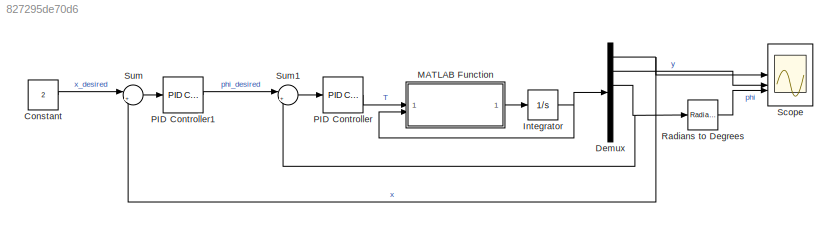
MODEL slx_827295de70d6
KIND model
CONFIG AbsTol = auto
CONFIG EnableMultiTasking = off
CONFIG FixedStep = 1e-3
CONFIG MaxStep = auto
CONFIG MinStep = auto
CONFIG RelTol = 1e-3
CONFIG SampleTimeConstraint = Unconstrained
CONFIG SolverName = FixedStepAuto
CONFIG StartTime = 0.0
CONFIG StopTime = 15
BLOCK [Constant] Constant
  Value = 2
BLOCK [Demux] Demux
  Outputs = 6
BLOCK [Integrator] Integrator
  InitialCondition = [0;0;0;0;0;0]
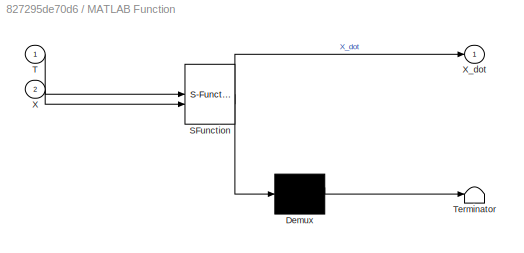
BLOCK [SubSystem] MATLAB Function
  ErrorFcn = Stateflow.Translate.translate
  LibrarySourceBlock = simulink/User-Defined\nFunctions/MATLAB Function
  PermitHierarchicalResolution = ExplicitOnly
  SFBlockType = MATLAB Function
  TreatAsAtomicUnit = on
BLOCK [Demux] MATLAB Function/ Demux 
  Outputs = 1
BLOCK [S-Function] MATLAB Function/ SFunction 
  EnableBusSupport = on
  FunctionName = sf_sfun
  PortCounts = [2 2]
  SFcnIsStateOwnerBlock = off
  SFunctionDeploymentMode = off
  Tag = Stateflow S-Function 2
BLOCK [Terminator] MATLAB Function/ Terminator 
BLOCK [Inport] MATLAB Function/T
BLOCK [Inport] MATLAB Function/X
  Port = 2
BLOCK [Outport] MATLAB Function/X_dot
BLOCK [Reference] PID Controller  REF=slpidlib/PID Controller
  LibrarySourceBlock = simulink/Continuous/PID Controller
  SourceBlock = slpidlib/PID Controller
  SourceType = PID 1dof
BLOCK [Reference] PID Controller1  REF=slpidlib/PID Controller
  LibrarySourceBlock = simulink/Continuous/PID Controller
  SourceBlock = slpidlib/PID Controller
  SourceType = PID 1dof
BLOCK [Reference] Radians to Degrees  REF=simulink_extras/Transformations/Radians
to Degrees
  SourceBlock = simulink_extras/Transformations/Radians\nto Degrees
  SourceType = RadiansToDegrees
BLOCK [Scope] Scope
  Floating = off
  NumInputPorts = 3
  ScopeSpecificationString = Simulink.scopes.TimeScopeBlockCfg('CurrentConfiguration', extmgr.ConfigurationSet(extmgr.Configuration('Core','General UI',true),extmgr.Configuration('Core','Source UI',true),extmgr.Configuration('Sources','WiredSimulink',true),extmgr.Configuration('Visuals','Time Domain',true,'SerializedDisplays',{struct('MinYLimReal','-0.27458','MaxYLimReal','2.47118','YLabelReal','','MinYLimMag','0.00000','MaxY...<+2737ch>
BLOCK [Sum] Sum
  Inputs = |+-
BLOCK [Sum] Sum1
  Inputs = |+-
LINE Constant:1 -> Sum:1
NET Demux:1 -> Scope:1, Sum:2
LINE Demux:2 -> Scope:2
NET Demux:3 -> Radians to Degrees:1, Sum1:2
NET Integrator:1 -> Demux:1, MATLAB Function:2
LINE MATLAB Function:1 -> Integrator:1
LINE PID Controller1:1 -> Sum1:1
LINE PID Controller:1 -> MATLAB Function:1
LINE Radians to Degrees:1 -> Scope:3
LINE Sum1:1 -> PID Controller:1
LINE Sum:1 -> PID Controller1:1
note: NET lines group one-source signal fan-out (src -> all destinations, sorted); 1:1 wires keep LINE
CHART MATLAB Function states=1 transitions=1
  STATE_LABEL 'eML_blk_kernel()'
  STATE_LABEL 'SCRIPT:\nfunction X_dot = fcn(T, X)\n% Dle https://cookierobotics.com/052/\n% [x1; x2; x3; x4; x5; x6] = [x, y, phi, x_dot, y_dot, phi_dot]\nx1 = X(1);\nx2 = X(2);\nx3 = X(3);\nx4 = X(4);\nx5 = X(5);\nx6 = X(6);\n\ng = 9.81;\nm = 0.18; %[kg]\nIxx = 0.00025; %[kg*m^2]\nL = 0.086; %[m]\nF_nominal = 0.89;\nk = 0.1; % tlumení\n\ndF = T/L;\nF = (F_nominal + dF) + (F_nominal - dF); % Celková tažná síla\n\n% Navíc jsem přida...<+205ch>'
CHART  states=0 transitions=0
